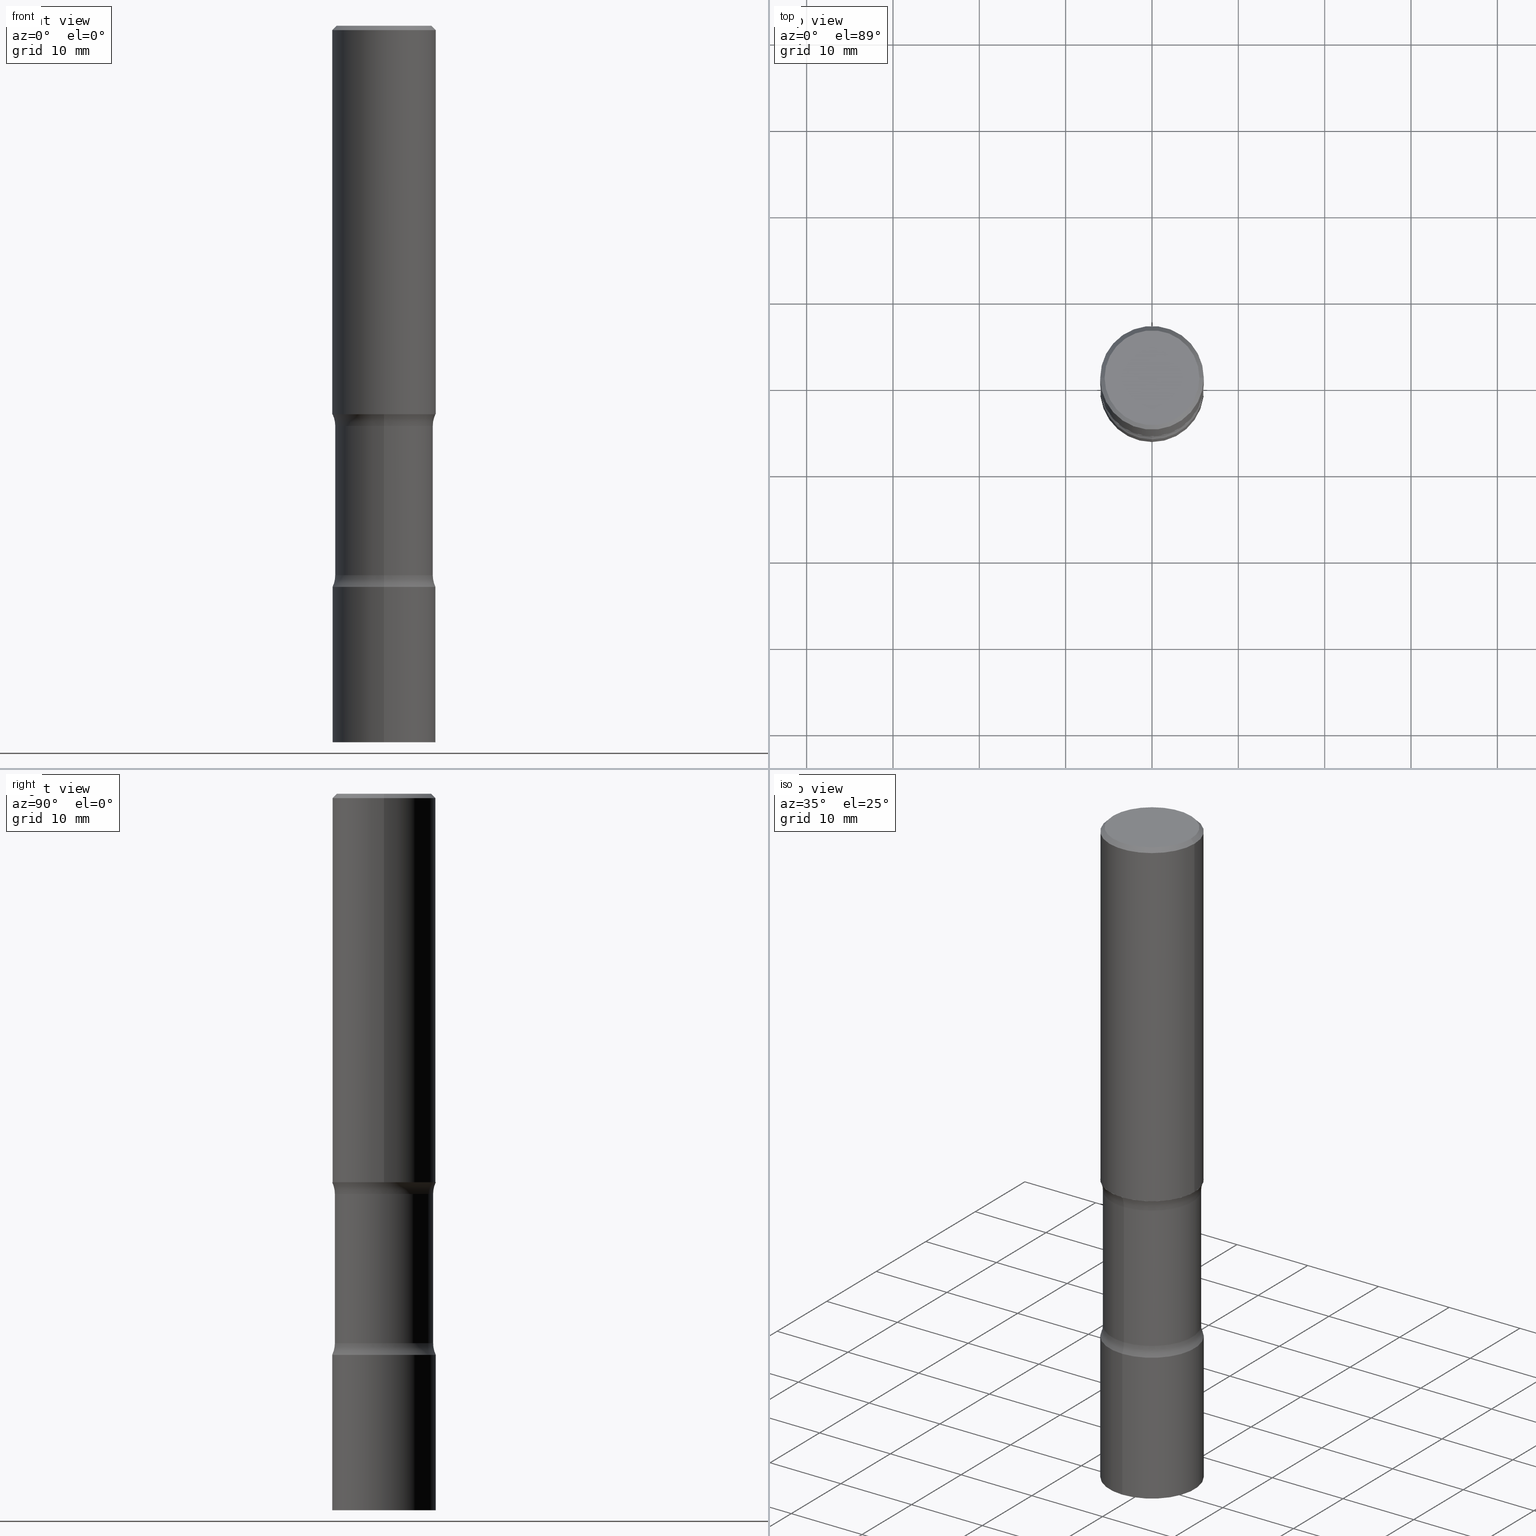
[diagram: canonical four-view strip — front | top / right | iso, engineering-drawing reading convention]
A machine part, canonical four-view strip (front | top / right | iso — engineering-drawing reading convention). The complete STEP part file that produces these views, byte-faithful:
ISO-10303-21;
HEADER;
FILE_DESCRIPTION (( 'STEP AP203' ),
    '1' );
FILE_NAME ('44650.STEP',
    '2024-03-11T13:40:11',
    ( '' ),
    ( '' ),
    'SwSTEP 2.0',
    'SolidWorks 2023',
    '' );
FILE_SCHEMA (( 'CONFIG_CONTROL_DESIGN' ));
ENDSEC;

DATA;
#1 = VERTEX_POINT ( 'NONE', #46 ) ;
#2 = CARTESIAN_POINT ( 'NONE',  ( 0.2161999999999997257, -1.586759460484350213E-15, -1.707404996039081677E-17 ) ) ;
#3 = ORIENTED_EDGE ( 'NONE', *, *, #405, .F. ) ;
#4 = FACE_OUTER_BOUND ( 'NONE', #274, .T. ) ;
#5 = CARTESIAN_POINT ( 'NONE',  ( 4.175405657340879278E-46, -5.961372681521788801E-32, -1.707404996040164512E-17 ) ) ;
#6 = DIRECTION ( 'NONE',  ( 1.000000000000000000, -6.982962677686267499E-15, 4.875778670202491993E-29 ) ) ;
#7 = AXIS2_PLACEMENT_3D ( 'NONE', #5, #330, #170 ) ;
#8 = DIRECTION ( 'NONE',  ( 1.000000000000000000, -6.982962677686266711E-15, 4.876176775795935793E-29 ) ) ;
#9 = AXIS2_PLACEMENT_3D ( 'NONE', #267, #463, #108 ) ;
#10 = APPROVAL_STATUS ( 'not_yet_approved' ) ;
#11 = ADVANCED_FACE ( 'NONE', ( #53 ), #48, .F. ) ;
#12 = FACE_OUTER_BOUND ( 'NONE', #232, .T. ) ;
#13 = APPROVAL_DATE_TIME ( #52, #237 ) ;
#14 = APPROVAL ( #101, 'UNSPECIFIED' ) ;
#15 = CYLINDRICAL_SURFACE ( 'NONE', #445, 0.2361999999999998545 ) ;
#16 = ORIENTED_EDGE ( 'NONE', *, *, #222, .T. ) ;
#17 = AXIS2_PLACEMENT_3D ( 'NONE', #485, #44, #250 ) ;
#18 = DIRECTION ( 'NONE',  ( -2.445468806185136597E-29, 3.491481338843145583E-15, 1.000000000000000000 ) ) ;
#19 = CARTESIAN_POINT ( 'NONE',  ( 6.251769390375393387E-29, -8.943558425766346826E-15, -2.559000000000000163 ) ) ;
#20 = DIRECTION ( 'NONE',  ( -2.443051735199450361E-29, 3.494942722065785173E-15, 1.000000000000000000 ) ) ;
#21 = CONICAL_SURFACE ( 'NONE', #271, 0.2361999999999997712, 0.7853981633974477239 ) ;
#22 = SHAPE_DEFINITION_REPRESENTATION ( #379, #129 ) ;
#23 = TOROIDAL_SURFACE ( 'NONE', #265, 0.3489999999999999769, 0.1249999999999999445 ) ;
#24 = EDGE_LOOP ( 'NONE', ( #387, #136, #426, #159 ) ) ;
#25 = DIRECTION ( 'NONE',  ( 2.458502273273184055E-29, -3.472816672154183992E-15, -1.000000000000000000 ) ) ;
#26 = CARTESIAN_POINT ( 'NONE',  ( 4.890937612370289799E-31, -6.982962677686315028E-17, -0.02000000000000006981 ) ) ;
#27 = CARTESIAN_POINT ( 'NONE',  ( 1.564183639801804262E-15, 0.2239999999999887081, -3.267700000000000937 ) ) ;
#28 = ORIENTED_EDGE ( 'NONE', *, *, #131, .T. ) ;
#29 = EDGE_CURVE ( 'NONE', #243, #293, #70, .T. ) ;
#30 = CIRCLE ( 'NONE', #300, 0.2361999999999997712 ) ;
#31 = PRODUCT ( '44650', '44650', '', ( #173 ) ) ;
#32 = CARTESIAN_POINT ( 'NONE',  ( 6.257954675027765161E-29, -8.934700746099610252E-15, -2.559000000000000163 ) ) ;
#33 = ORIENTED_EDGE ( 'NONE', *, *, #316, .F. ) ;
#34 = CARTESIAN_POINT ( 'NONE',  ( 1.564183639801786316E-15, 0.2239999999999914837, -2.505137582675859065 ) ) ;
#35 = ORIENTED_EDGE ( 'NONE', *, *, #294, .F. ) ;
#36 = ADVANCED_FACE ( 'NONE', ( #372 ), #124, .T. ) ;
#37 = ORIENTED_EDGE ( 'NONE', *, *, #278, .T. ) ;
#38 = VECTOR ( 'NONE', #110, 39.37007874015748143 ) ;
#39 = AXIS2_PLACEMENT_3D ( 'NONE', #82, #132, #448 ) ;
#40 = EDGE_LOOP ( 'NONE', ( #353, #428, #116, #486 ) ) ;
#41 = ADVANCED_FACE ( 'NONE', ( #253 ), #15, .T. ) ;
#42 = CARTESIAN_POINT ( 'NONE',  ( -0.2161999999999997257, 1.544631344304200197E-15, -1.707404996041232555E-17 ) ) ;
#43 = ORIENTED_EDGE ( 'NONE', *, *, #61, .F. ) ;
#44 = DIRECTION ( 'NONE',  ( -2.443051735199450361E-29, 3.494942722065785173E-15, 1.000000000000000000 ) ) ;
#45 = DIRECTION ( 'NONE',  ( 2.458502273273184055E-29, -3.472816672154183992E-15, -1.000000000000000000 ) ) ;
#46 = CARTESIAN_POINT ( 'NONE',  ( 1.678301941865427392E-15, 0.2361999999999885858, -3.267700000000001381 ) ) ;
#47 = DIRECTION ( 'NONE',  ( 0.000000000000000000, 0.000000000000000000, 1.000000000000000000 ) ) ;
#48 = PLANE ( 'NONE',  #416 ) ;
#49 = AXIS2_PLACEMENT_3D ( 'NONE', #120, #275, #283 ) ;
#50 = CARTESIAN_POINT ( 'NONE',  ( 0.000000000000000000, 0.000000000000000000, 0.000000000000000000 ) ) ;
#51 = DIRECTION ( 'NONE',  ( 2.458502273273184055E-29, -3.472816672154183992E-15, -1.000000000000000000 ) ) ;
#52 = DATE_AND_TIME ( #210, #107 ) ;
#53 = FACE_OUTER_BOUND ( 'NONE', #68, .T. ) ;
#54 = ADVANCED_FACE ( 'NONE', ( #130 ), #86, .T. ) ;
#55 = CIRCLE ( 'NONE', #348, 0.2361999999999999933 ) ;
#56 = LINE ( 'NONE', #140, #155 ) ;
#57 = EDGE_CURVE ( 'NONE', #166, #408, #437, .T. ) ;
#58 = VECTOR ( 'NONE', #490, 39.37007874015748143 ) ;
#59 = CARTESIAN_POINT ( 'NONE',  ( 0.2361999999999997712, -1.690279253850497193E-15, -0.02000000000000006981 ) ) ;
#60 = CARTESIAN_POINT ( 'NONE',  ( 5.763202744330926742E-29, -4.136506686390871865E-15, -1.771599999999999842 ) ) ;
#61 = EDGE_CURVE ( 'NONE', #1, #196, #55, .T. ) ;
#62 = DIRECTION ( 'NONE',  ( 2.445468806185136597E-29, -3.491481338843145583E-15, -1.000000000000000000 ) ) ;
#63 = VECTOR ( 'NONE', #259, 39.37007874015748143 ) ;
#64 = CC_DESIGN_PERSON_AND_ORGANIZATION_ASSIGNMENT ( #298, #455, ( #171 ) ) ;
#65 = DIRECTION ( 'NONE',  ( -6.982962677686265922E-15, -1.000000000000000000, 3.494942722065785173E-15 ) ) ;
#66 = DIRECTION ( 'NONE',  ( 1.000000000000000000, -6.982962677686266711E-15, 0.000000000000000000 ) ) ;
#67 = DIRECTION ( 'NONE',  ( -2.458502273273183494E-29, 3.472816672154183992E-15, 1.000000000000000000 ) ) ;
#68 = EDGE_LOOP ( 'NONE', ( #442, #33 ) ) ;
#69 = CARTESIAN_POINT ( 'NONE',  ( -0.2361999999999997712, 1.579546157692631452E-15, -0.02000000000000006981 ) ) ;
#70 = CIRCLE ( 'NONE', #280, 0.2362000000000000210 ) ;
#71 = AXIS2_PLACEMENT_3D ( 'NONE', #182, #461, #338 ) ;
#72 = ORIENTED_EDGE ( 'NONE', *, *, #364, .T. ) ;
#73 = CC_DESIGN_PERSON_AND_ORGANIZATION_ASSIGNMENT ( #324, #133, ( #31 ) ) ;
#74 = ADVANCED_FACE ( 'NONE', ( #12 ), #105, .T. ) ;
#75 = AXIS2_PLACEMENT_3D ( 'NONE', #318, #472, #80 ) ;
#76 = ORIENTED_EDGE ( 'NONE', *, *, #429, .T. ) ;
#77 = EDGE_CURVE ( 'NONE', #362, #467, #383, .T. ) ;
#78 = ORIENTED_EDGE ( 'NONE', *, *, #260, .T. ) ;
#79 = PERSON ( 'UNSPECIFIED', 'UNSPECIFIED', 'UNSPECIFIED', ('UNSPECIFIED'), ('UNSPECIFIED'), ('UNSPECIFIED') ) ;
#80 = DIRECTION ( 'NONE',  ( 1.000000000000000000, -6.982962677686266711E-15, 0.000000000000000000 ) ) ;
#81 = ORIENTED_EDGE ( 'NONE', *, *, #222, .F. ) ;
#82 = CARTESIAN_POINT ( 'NONE',  ( 6.251769390375393387E-29, -8.943558425766346826E-15, -2.559000000000000163 ) ) ;
#83 = AXIS2_PLACEMENT_3D ( 'NONE', #464, #352, #380 ) ;
#84 = CARTESIAN_POINT ( 'NONE',  ( 4.315944700400087943E-29, -6.209062578112139389E-15, -1.771599999999999842 ) ) ;
#85 = DIRECTION ( 'NONE',  ( -2.445468806185136597E-29, 3.491481338843145583E-15, 1.000000000000000000 ) ) ;
#86 = PLANE ( 'NONE',  #221 ) ;
#87 = PERSON_AND_ORGANIZATION_ROLE ( 'creator' ) ;
#88 = ORIENTED_EDGE ( 'NONE', *, *, #77, .T. ) ;
#89 = COORDINATED_UNIVERSAL_TIME_OFFSET ( 5, 0, .BEHIND. ) ;
#90 = VECTOR ( 'NONE', #483, 39.37007874015748143 ) ;
#91 = FACE_OUTER_BOUND ( 'NONE', #465, .T. ) ;
#92 = VECTOR ( 'NONE', #149, 39.37007874015748143 ) ;
#93 =( LENGTH_UNIT ( ) NAMED_UNIT ( * ) SI_UNIT ( $, .METRE. ) );
#94 = ORIENTED_EDGE ( 'NONE', *, *, #268, .F. ) ;
#95 = APPROVAL_DATE_TIME ( #213, #492 ) ;
#96 = DIRECTION ( 'NONE',  ( 6.982962677686265133E-15, 1.000000000000000000, -3.472816672154183992E-15 ) ) ;
#97 = APPLICATION_PROTOCOL_DEFINITION ( 'international standard', 'config_control_design', 1994, #270 ) ;
#98 = CARTESIAN_POINT ( 'NONE',  ( 0.2361999999999999378, -7.834884124364012517E-15, -1.771600000000000064 ) ) ;
#99 = ADVANCED_FACE ( 'NONE', ( #91 ), #205, .F. ) ;
#100 = CIRCLE ( 'NONE', #75, 0.2361999999999997712 ) ;
#101 = APPROVAL_STATUS ( 'not_yet_approved' ) ;
#102 = DIRECTION ( 'NONE',  ( 1.000000000000000000, -6.982962677686266711E-15, 0.000000000000000000 ) ) ;
#103 = CYLINDRICAL_SURFACE ( 'NONE', #117, 0.2240000000000001157 ) ;
#104 = DIRECTION ( 'NONE',  ( 6.982962677686265922E-15, 1.000000000000000000, -2.439149994343090877E-15 ) ) ;
#105 = CONICAL_SURFACE ( 'NONE', #233, 0.2361999999999997712, 0.7853981633974477239 ) ;
#106 = ORIENTED_EDGE ( 'NONE', *, *, #354, .F. ) ;
#107 = LOCAL_TIME ( 9, 40, 11.00000000000000000, #89 ) ;
#108 = DIRECTION ( 'NONE',  ( 6.982962677686265922E-15, 1.000000000000000000, -2.439149994343090877E-15 ) ) ;
#109 = MANIFOLD_SOLID_BREP ( 'Body-Move/Copy2[1]', #154 ) ;
#110 = DIRECTION ( 'NONE',  ( -2.445468806185136877E-29, 3.491481338843145188E-15, 1.000000000000000000 ) ) ;
#111 = ORIENTED_EDGE ( 'NONE', *, *, #474, .F. ) ;
#112 = DIRECTION ( 'NONE',  ( 1.000000000000000000, -6.860497997771530774E-15, 4.841027455867320914E-29 ) ) ;
#113 = DIRECTION ( 'NONE',  ( 6.982962677686266711E-15, 1.000000000000000000, -3.658724991514638486E-15 ) ) ;
#114 = AXIS2_PLACEMENT_3D ( 'NONE', #19, #491, #139 ) ;
#115 = DIMENSIONAL_EXPONENTS ( 1.000000000000000000, 0.000000000000000000, 0.000000000000000000, 0.000000000000000000, 0.000000000000000000, 0.000000000000000000, 0.000000000000000000 ) ;
#116 = ORIENTED_EDGE ( 'NONE', *, *, #202, .F. ) ;
#117 = AXIS2_PLACEMENT_3D ( 'NONE', #342, #496, #104 ) ;
#118 = ORIENTED_EDGE ( 'NONE', *, *, #228, .T. ) ;
#119 = ADVANCED_FACE ( 'NONE', ( #163 ), #323, .F. ) ;
#120 = CARTESIAN_POINT ( 'NONE',  ( 1.509716530915768746E-15, 0.2161999999999997257, -7.633952904380879871E-16 ) ) ;
#121 = DIRECTION ( 'NONE',  ( 6.860497997771532351E-15, 1.000000000000000000, 0.000000000000000000 ) ) ;
#122 = ORIENTED_EDGE ( 'NONE', *, *, #477, .F. ) ;
#123 = ORIENTED_EDGE ( 'NONE', *, *, #200, .F. ) ;
#124 = CYLINDRICAL_SURFACE ( 'NONE', #242, 0.2361999999999998545 ) ;
#125 = PERSON_AND_ORGANIZATION ( #79, #256 ) ;
#126 = CC_DESIGN_DATE_AND_TIME_ASSIGNMENT ( #226, #340, ( #171 ) ) ;
#127 = EDGE_LOOP ( 'NONE', ( #501, #78, #504, #184 ) ) ;
#128 =( NAMED_UNIT ( * ) PLANE_ANGLE_UNIT ( ) SI_UNIT ( $, .RADIAN. ) );
#129 = ADVANCED_BREP_SHAPE_REPRESENTATION ( '44650', ( #109, #282, #452, #341 ), #479 ) ;
#130 = FACE_OUTER_BOUND ( 'NONE', #189, .T. ) ;
#131 = EDGE_CURVE ( 'NONE', #398, #408, #365, .T. ) ;
#132 = DIRECTION ( 'NONE',  ( -2.443051735199450361E-29, 3.494942722065785173E-15, 1.000000000000000000 ) ) ;
#133 = PERSON_AND_ORGANIZATION_ROLE ( 'design_owner' ) ;
#134 = AXIS2_PLACEMENT_3D ( 'NONE', #457, #18, #102 ) ;
#135 = VECTOR ( 'NONE', #197, 39.37007874015748143 ) ;
#136 = ORIENTED_EDGE ( 'NONE', *, *, #61, .T. ) ;
#137 = LENGTH_MEASURE_WITH_UNIT ( LENGTH_MEASURE( 0.02539999999999999897 ), #93 );
#138 = ADVANCED_FACE ( 'NONE', ( #296 ), #263, .F. ) ;
#139 = DIRECTION ( 'NONE',  ( 6.982962677686265922E-15, 1.000000000000000000, -4.626330217890370125E-15 ) ) ;
#140 = CARTESIAN_POINT ( 'NONE',  ( -1.649375784469495934E-15, -0.2361999999999999933, 8.255054709519384761E-16 ) ) ;
#141 = AXIS2_PLACEMENT_3D ( 'NONE', #227, #425, #145 ) ;
#142 = DIRECTION ( 'NONE',  ( 2.458502273273184055E-29, -3.472816672154183992E-15, -1.000000000000000000 ) ) ;
#143 = LOCAL_TIME ( 9, 40, 11.00000000000000000, #451 ) ;
#144 = COORDINATED_UNIVERSAL_TIME_OFFSET ( 5, 0, .BEHIND. ) ;
#145 = DIRECTION ( 'NONE',  ( -6.982962677686265133E-15, -1.000000000000000000, 0.000000000000000000 ) ) ;
#146 = FACE_OUTER_BOUND ( 'NONE', #262, .T. ) ;
#147 = LINE ( 'NONE', #307, #470 ) ;
#148 = COORDINATED_UNIVERSAL_TIME_OFFSET ( 5, 0, .BEHIND. ) ;
#149 = DIRECTION ( 'NONE',  ( 2.458502273273184335E-29, -3.472816672154183992E-15, -1.000000000000000000 ) ) ;
#150 = ORIENTED_EDGE ( 'NONE', *, *, #29, .T. ) ;
#151 = PLANE ( 'NONE',  #49 ) ;
#152 = DIRECTION ( 'NONE',  ( 2.458502273273184055E-29, -3.472816672154183992E-15, -1.000000000000000000 ) ) ;
#153 = ORIENTED_EDGE ( 'NONE', *, *, #187, .T. ) ;
#154 = CLOSED_SHELL ( 'NONE', ( #207, #183, #119, #54 ) ) ;
#155 = VECTOR ( 'NONE', #386, 39.37007874015748143 ) ;
#156 = ORIENTED_EDGE ( 'NONE', *, *, #320, .F. ) ;
#157 = CIRCLE ( 'NONE', #487, 0.2362000000000000210 ) ;
#158 = DIRECTION ( 'NONE',  ( 6.982962677686265133E-15, 1.000000000000000000, -3.472816672154183992E-15 ) ) ;
#159 = ORIENTED_EDGE ( 'NONE', *, *, #343, .F. ) ;
#160 = ORIENTED_EDGE ( 'NONE', *, *, #202, .T. ) ;
#161 = DIRECTION ( 'NONE',  ( -2.445468806185136597E-29, 3.491481338843145583E-15, 1.000000000000000000 ) ) ;
#162 = ADVANCED_FACE ( 'NONE', ( #219 ), #401, .F. ) ;
#163 = FACE_OUTER_BOUND ( 'NONE', #402, .T. ) ;
#164 = ADVANCED_FACE ( 'NONE', ( #378 ), #21, .T. ) ;
#165 = CIRCLE ( 'NONE', #39, 0.2361999999999999655 ) ;
#166 = VERTEX_POINT ( 'NONE', #337 ) ;
#167 = DIRECTION ( 'NONE',  ( -1.000000000000000000, 6.982962677686266711E-15, 0.000000000000000000 ) ) ;
#168 = PERSON_AND_ORGANIZATION ( #79, #256 ) ;
#169 = LINE ( 'NONE', #292, #135 ) ;
#170 = DIRECTION ( 'NONE',  ( 1.000000000000000000, -6.982962677686267499E-15, 4.875778670202491993E-29 ) ) ;
#171 = SECURITY_CLASSIFICATION ( '', '', #388 ) ;
#172 = DIRECTION ( 'NONE',  ( 2.443051735199450081E-29, -3.494942722065785173E-15, -1.000000000000000000 ) ) ;
#173 = MECHANICAL_CONTEXT ( 'NONE', #270, 'mechanical' ) ;
#174 = CARTESIAN_POINT ( 'NONE',  ( 6.126235813635851018E-29, -8.746641121147388193E-15, -2.505137582675858621 ) ) ;
#175 = PRODUCT_DEFINITION ( 'UNKNOWN', '', #440, #399 ) ;
#176 = DIRECTION ( 'NONE',  ( 2.458502273273184055E-29, -3.472816672154183992E-15, -1.000000000000000000 ) ) ;
#177 = PERSON_AND_ORGANIZATION ( #79, #256 ) ;
#178 = AXIS2_PLACEMENT_3D ( 'NONE', #295, #255, #420 ) ;
#179 = CARTESIAN_POINT ( 'NONE',  ( -1.578600589287185035E-15, -0.2240000000000063607, -1.825462417324140496 ) ) ;
#180 = ORIENTED_EDGE ( 'NONE', *, *, #260, .F. ) ;
#181 = CIRCLE ( 'NONE', #284, 0.1249999999999999584 ) ;
#182 = CARTESIAN_POINT ( 'NONE',  ( 6.257954675027765161E-29, -8.934700746099610252E-15, -2.559000000000000163 ) ) ;
#183 = ADVANCED_FACE ( 'NONE', ( #303 ), #186, .T. ) ;
#184 = ORIENTED_EDGE ( 'NONE', *, *, #57, .F. ) ;
#185 = DIRECTION ( 'NONE',  ( 6.982962677686265922E-15, 1.000000000000000000, -4.626330217890370125E-15 ) ) ;
#186 = CYLINDRICAL_SURFACE ( 'NONE', #339, 0.2361999999999999933 ) ;
#187 = EDGE_CURVE ( 'NONE', #239, #166, #454, .T. ) ;
#188 = CARTESIAN_POINT ( 'NONE',  ( -0.2361999999999998545, 1.678301941865355605E-15, -1.161852468318208056E-29 ) ) ;
#189 = EDGE_LOOP ( 'NONE', ( #505, #43 ) ) ;
#190 = AXIS2_PLACEMENT_3D ( 'NONE', #430, #152, #349 ) ;
#191 = LINE ( 'NONE', #27, #92 ) ;
#192 = ORIENTED_EDGE ( 'NONE', *, *, #424, .T. ) ;
#193 = DIRECTION ( 'NONE',  ( 2.458502273273184055E-29, -3.472816672154183992E-15, -1.000000000000000000 ) ) ;
#194 = ORIENTED_EDGE ( 'NONE', *, *, #343, .T. ) ;
#195 = CIRCLE ( 'NONE', #114, 0.2361999999999999655 ) ;
#196 = VERTEX_POINT ( 'NONE', #493 ) ;
#197 = DIRECTION ( 'NONE',  ( -2.445468806185136877E-29, 3.491481338843145188E-15, 1.000000000000000000 ) ) ;
#198 = APPROVAL_PERSON_ORGANIZATION ( #290, #492, #409 ) ;
#199 = VERTEX_POINT ( 'NONE', #98 ) ;
#200 = EDGE_CURVE ( 'NONE', #398, #269, #195, .T. ) ;
#201 = DIRECTION ( 'NONE',  ( 2.445468806185136597E-29, -3.491481338843145583E-15, -1.000000000000000000 ) ) ;
#202 = EDGE_CURVE ( 'NONE', #319, #359, #407, .T. ) ;
#203 = CARTESIAN_POINT ( 'NONE',  ( 4.464111398429501786E-29, -6.373567964846738051E-15, -1.825462417324141384 ) ) ;
#204 = DIRECTION ( 'NONE',  ( 6.982962677686265922E-15, 1.000000000000000000, -2.439149994343089694E-15 ) ) ;
#205 = TOROIDAL_SURFACE ( 'NONE', #297, 0.3490000000000000879, 0.1249999999999999584 ) ;
#206 = DATE_AND_TIME ( #254, #291 ) ;
#207 = ADVANCED_FACE ( 'NONE', ( #257 ), #376, .T. ) ;
#208 = CC_DESIGN_SECURITY_CLASSIFICATION ( #171, ( #440 ) ) ;
#209 = EDGE_LOOP ( 'NONE', ( #81, #94, #471, #192 ) ) ;
#210 = CALENDAR_DATE ( 2024, 11, 3 ) ;
#211 = EDGE_CURVE ( 'NONE', #196, #319, #56, .T. ) ;
#212 = CARTESIAN_POINT ( 'NONE',  ( 0.000000000000000000, 0.000000000000000000, 0.000000000000000000 ) ) ;
#213 = DATE_AND_TIME ( #412, #143 ) ;
#214 = CARTESIAN_POINT ( 'NONE',  ( 4.332392537037588203E-29, -6.185508339894515992E-15, -1.771600000000000064 ) ) ;
#215 = AXIS2_PLACEMENT_3D ( 'NONE', #368, #489, #204 ) ;
#216 = APPROVAL_ROLE ( '' ) ;
#217 = CC_DESIGN_APPROVAL ( #14, ( #171 ) ) ;
#218 = DIRECTION ( 'NONE',  ( 6.860497997771529985E-15, 1.000000000000000000, 0.000000000000000000 ) ) ;
#219 = FACE_OUTER_BOUND ( 'NONE', #476, .T. ) ;
#220 = DIRECTION ( 'NONE',  ( 2.458502273273183494E-29, -3.472816672154183992E-15, -1.000000000000000000 ) ) ;
#221 = AXIS2_PLACEMENT_3D ( 'NONE', #450, #172, #247 ) ;
#222 = EDGE_CURVE ( 'NONE', #239, #243, #446, .T. ) ;
#223 = CARTESIAN_POINT ( 'NONE',  ( -1.536751551500743867E-15, -0.2240000000000115232, -3.267699999999999605 ) ) ;
#224 = CIRCLE ( 'NONE', #17, 0.2361999999999999933 ) ;
#225 = VERTEX_POINT ( 'NONE', #59 ) ;
#226 = DATE_AND_TIME ( #494, #350 ) ;
#227 = CARTESIAN_POINT ( 'NONE',  ( 2.437053974512568471E-15, 0.3489999999999913727, -2.505137582675859953 ) ) ;
#228 = EDGE_CURVE ( 'NONE', #199, #393, #289, .T. ) ;
#229 = ADVANCED_FACE ( 'NONE', ( #146 ), #419, .F. ) ;
#230 = FACE_OUTER_BOUND ( 'NONE', #481, .T. ) ;
#231 = CC_DESIGN_PERSON_AND_ORGANIZATION_ASSIGNMENT ( #168, #331, ( #440 ) ) ;
#232 = EDGE_LOOP ( 'NONE', ( #122, #462, #37, #435 ) ) ;
#233 = AXIS2_PLACEMENT_3D ( 'NONE', #484, #201, #167 ) ;
#234 = CARTESIAN_POINT ( 'NONE',  ( -1.620449627073573153E-15, -0.2362000000000089306, -2.558999999999999719 ) ) ;
#235 = EDGE_LOOP ( 'NONE', ( #118, #397, #106, #478 ) ) ;
#236 = AXIS2_PLACEMENT_3D ( 'NONE', #441, #85, #6 ) ;
#237 = APPROVAL ( #367, 'UNSPECIFIED' ) ;
#238 = ORIENTED_EDGE ( 'NONE', *, *, #474, .T. ) ;
#239 = VERTEX_POINT ( 'NONE', #179 ) ;
#240 = CARTESIAN_POINT ( 'NONE',  ( 6.119348514940003175E-29, -8.756504124880539089E-15, -2.505137582675858621 ) ) ;
#241 = ADVANCED_FACE ( 'NONE', ( #305 ), #103, .T. ) ;
#242 = AXIS2_PLACEMENT_3D ( 'NONE', #212, #249, #366 ) ;
#243 = VERTEX_POINT ( 'NONE', #264 ) ;
#244 = APPROVAL_PERSON_ORGANIZATION ( #177, #14, #391 ) ;
#245 = EDGE_CURVE ( 'NONE', #393, #273, #427, .T. ) ;
#246 = DIRECTION ( 'NONE',  ( -2.443051735199450361E-29, 3.494942722065785173E-15, 1.000000000000000000 ) ) ;
#247 = DIRECTION ( 'NONE',  ( 6.982962677686265922E-15, 1.000000000000000000, -3.494942722065785173E-15 ) ) ;
#248 = CARTESIAN_POINT ( 'NONE',  ( 0.2361999999999997712, -1.690279253850497193E-15, -0.02000000000000006981 ) ) ;
#249 = DIRECTION ( 'NONE',  ( -2.445468806185136597E-29, 3.491481338843145583E-15, 1.000000000000000000 ) ) ;
#250 = DIRECTION ( 'NONE',  ( -6.982962677686265922E-15, -1.000000000000000000, 4.626330217890369336E-15 ) ) ;
#251 = AXIS2_PLACEMENT_3D ( 'NONE', #302, #25, #185 ) ;
#252 = LINE ( 'NONE', #488, #58 ) ;
#253 = FACE_OUTER_BOUND ( 'NONE', #235, .T. ) ;
#254 = CALENDAR_DATE ( 2024, 11, 3 ) ;
#255 = DIRECTION ( 'NONE',  ( -2.443051735199450361E-29, 3.494942722065785173E-15, 1.000000000000000000 ) ) ;
#256 = ORGANIZATION ( 'UNSPECIFIED', 'UNSPECIFIED', '' ) ;
#257 = FACE_OUTER_BOUND ( 'NONE', #40, .T. ) ;
#258 = ADVANCED_FACE ( 'NONE', ( #230 ), #503, .T. ) ;
#259 = DIRECTION ( 'NONE',  ( 2.458502273273184335E-29, -3.472816672154183992E-15, -1.000000000000000000 ) ) ;
#260 = EDGE_CURVE ( 'NONE', #239, #312, #396, .T. ) ;
#261 = DIRECTION ( 'NONE',  ( 6.982962677686265133E-15, 1.000000000000000000, -3.472816672154183992E-15 ) ) ;
#262 = EDGE_LOOP ( 'NONE', ( #363, #306 ) ) ;
#263 = TOROIDAL_SURFACE ( 'NONE', #432, 0.3489999999999999769, 0.1249999999999999445 ) ;
#264 = CARTESIAN_POINT ( 'NONE',  ( -1.620449627073592086E-15, -0.2362000000000061828, -1.771599999999998953 ) ) ;
#265 = AXIS2_PLACEMENT_3D ( 'NONE', #203, #506, #158 ) ;
#266 = PLANE ( 'NONE',  #325 ) ;
#267 = CARTESIAN_POINT ( 'NONE',  ( 7.994109951444100629E-29, -1.140474360132201428E-14, -3.267700000000000049 ) ) ;
#268 = EDGE_CURVE ( 'NONE', #312, #239, #317, .T. ) ;
#269 = VERTEX_POINT ( 'NONE', #234 ) ;
#270 = APPLICATION_CONTEXT ( 'configuration controlled 3d designs of mechanical parts and assemblies' ) ;
#271 = AXIS2_PLACEMENT_3D ( 'NONE', #26, #62, #459 ) ;
#272 = DIRECTION ( 'NONE',  ( 6.982962677686265922E-15, 1.000000000000000000, -2.439149994343089694E-15 ) ) ;
#273 = VERTEX_POINT ( 'NONE', #69 ) ;
#274 = EDGE_LOOP ( 'NONE', ( #180, #16, #150, #439 ) ) ;
#275 = DIRECTION ( 'NONE',  ( 2.438088387897960049E-29, -3.491481338843145188E-15, -1.000000000000000000 ) ) ;
#276 = ADVANCED_FACE ( 'NONE', ( #395 ), #266, .F. ) ;
#277 = ORIENTED_EDGE ( 'NONE', *, *, #131, .F. ) ;
#278 = EDGE_CURVE ( 'NONE', #362, #273, #147, .T. ) ;
#279 = CARTESIAN_POINT ( 'NONE',  ( 1.649375784469558845E-15, 0.2361999999999910560, -2.559000000000000608 ) ) ;
#280 = AXIS2_PLACEMENT_3D ( 'NONE', #84, #406, #287 ) ;
#281 = ORIENTED_EDGE ( 'NONE', *, *, #405, .T. ) ;
#282 = MANIFOLD_SOLID_BREP ( 'Body-Move/Copy2[2]', #373 ) ;
#283 = DIRECTION ( 'NONE',  ( -1.000000000000000000, 6.982962677686265922E-15, -4.876176775795935793E-29 ) ) ;
#284 = AXIS2_PLACEMENT_3D ( 'NONE', #381, #321, #357 ) ;
#285 = CARTESIAN_POINT ( 'NONE',  ( -2.394313801222203653E-15, -0.3490000000000088032, -2.505137582675857733 ) ) ;
#286 = CARTESIAN_POINT ( 'NONE',  ( 0.000000000000000000, 0.000000000000000000, 0.000000000000000000 ) ) ;
#287 = DIRECTION ( 'NONE',  ( 6.982962677686265922E-15, 1.000000000000000000, -3.469747663417777002E-15 ) ) ;
#288 = ORIENTED_EDGE ( 'NONE', *, *, #364, .F. ) ;
#289 = CIRCLE ( 'NONE', #134, 0.2361999999999999378 ) ;
#290 = PERSON_AND_ORGANIZATION ( #79, #256 ) ;
#291 = LOCAL_TIME ( 9, 40, 11.00000000000000000, #444 ) ;
#292 = CARTESIAN_POINT ( 'NONE',  ( 0.2361999999999998545, -1.649375784469495145E-15, 1.151752954442999387E-29 ) ) ;
#293 = VERTEX_POINT ( 'NONE', #392 ) ;
#294 = EDGE_CURVE ( 'NONE', #312, #408, #191, .T. ) ;
#295 = CARTESIAN_POINT ( 'NONE',  ( 6.251769390375393387E-29, -8.943558425766346826E-15, -2.559000000000000163 ) ) ;
#296 = FACE_OUTER_BOUND ( 'NONE', #209, .T. ) ;
#297 = AXIS2_PLACEMENT_3D ( 'NONE', #411, #51, #332 ) ;
#298 = PERSON_AND_ORGANIZATION ( #79, #256 ) ;
#299 = APPLICATION_CONTEXT ( 'configuration controlled 3d designs of mechanical parts and assemblies' ) ;
#300 = AXIS2_PLACEMENT_3D ( 'NONE', #371, #161, #66 ) ;
#301 = DIRECTION ( 'NONE',  ( -6.982962677686265922E-15, -1.000000000000000000, 3.494942722065785173E-15 ) ) ;
#302 = CARTESIAN_POINT ( 'NONE',  ( 6.251769390375393387E-29, -8.943558425766346826E-15, -2.559000000000000163 ) ) ;
#303 = FACE_OUTER_BOUND ( 'NONE', #24, .T. ) ;
#304 = CARTESIAN_POINT ( 'NONE',  ( -1.649375784469433022E-15, -0.2362000000000089028, -2.558999999999999275 ) ) ;
#305 = FACE_OUTER_BOUND ( 'NONE', #127, .T. ) ;
#306 = ORIENTED_EDGE ( 'NONE', *, *, #29, .F. ) ;
#307 = CARTESIAN_POINT ( 'NONE',  ( -0.2361999999999997712, 1.579546157692631452E-15, -0.02000000000000006981 ) ) ;
#308 = LOCAL_TIME ( 9, 40, 11.00000000000000000, #144 ) ;
#309 = CARTESIAN_POINT ( 'NONE',  ( 1.564183639801767975E-15, 0.2239999999999935931, -1.825462417324142050 ) ) ;
#310 = EDGE_LOOP ( 'NONE', ( #351, #434 ) ) ;
#311 = DIRECTION ( 'NONE',  ( 2.458502273273184055E-29, -3.472816672154183992E-15, -1.000000000000000000 ) ) ;
#312 = VERTEX_POINT ( 'NONE', #309 ) ;
#313 = AXIS2_PLACEMENT_3D ( 'NONE', #415, #20, #301 ) ;
#314 = ORIENTED_EDGE ( 'NONE', *, *, #394, .F. ) ;
#315 = CIRCLE ( 'NONE', #83, 0.2361999999999999378 ) ;
#316 = EDGE_CURVE ( 'NONE', #393, #199, #315, .T. ) ;
#317 = CIRCLE ( 'NONE', #410, 0.2239999999999999769 ) ;
#318 = CARTESIAN_POINT ( 'NONE',  ( 4.890937612370289799E-31, -6.982962677686315028E-17, -0.02000000000000006981 ) ) ;
#319 = VERTEX_POINT ( 'NONE', #304 ) ;
#320 = EDGE_CURVE ( 'NONE', #269, #398, #423, .T. ) ;
#321 = DIRECTION ( 'NONE',  ( -1.000000000000000000, 6.982962677686265922E-15, -4.883557194083112901E-29 ) ) ;
#322 = ORIENTED_EDGE ( 'NONE', *, *, #477, .T. ) ;
#323 = PLANE ( 'NONE',  #71 ) ;
#324 = PERSON_AND_ORGANIZATION ( #79, #256 ) ;
#325 = AXIS2_PLACEMENT_3D ( 'NONE', #32, #67, #498 ) ;
#326 = CC_DESIGN_DATE_AND_TIME_ASSIGNMENT ( #206, #369, ( #175 ) ) ;
#327 = DIRECTION ( 'NONE',  ( 1.000000000000000000, -6.982962677686265922E-15, 4.876176775795935793E-29 ) ) ;
#328 = PERSON_AND_ORGANIZATION ( #79, #256 ) ;
#329 = PRODUCT_RELATED_PRODUCT_CATEGORY ( 'detail', '', ( #31 ) ) ;
#330 = DIRECTION ( 'NONE',  ( -2.445468806185136597E-29, 3.491481338843145583E-15, 1.000000000000000000 ) ) ;
#331 = PERSON_AND_ORGANIZATION_ROLE ( 'creator' ) ;
#332 = DIRECTION ( 'NONE',  ( 6.982962677686265133E-15, 1.000000000000000000, -3.472816672154183992E-15 ) ) ;
#333 = APPROVAL_PERSON_ORGANIZATION ( #328, #237, #216 ) ;
#334 = DIRECTION ( 'NONE',  ( 6.982962677686265922E-15, 1.000000000000000000, -3.469747663417777002E-15 ) ) ;
#335 = ORIENTED_EDGE ( 'NONE', *, *, #316, .T. ) ;
#336 = APPLICATION_PROTOCOL_DEFINITION ( 'international standard', 'config_control_design', 1994, #299 ) ;
#337 = CARTESIAN_POINT ( 'NONE',  ( -1.578600589287168075E-15, -0.2240000000000089697, -2.505137582675858177 ) ) ;
#338 = DIRECTION ( 'NONE',  ( 6.982962677686265922E-15, 1.000000000000000000, -3.494942722065785173E-15 ) ) ;
#339 = AXIS2_PLACEMENT_3D ( 'NONE', #389, #346, #65 ) ;
#340 = DATE_TIME_ROLE ( 'classification_date' ) ;
#341 = AXIS2_PLACEMENT_3D ( 'NONE', #50, #47, #453 ) ;
#342 = CARTESIAN_POINT ( 'NONE',  ( 7.994109951444100629E-29, -1.140474360132201428E-14, -3.267700000000000049 ) ) ;
#343 = EDGE_CURVE ( 'NONE', #359, #319, #165, .T. ) ;
#344 = ORIENTED_EDGE ( 'NONE', *, *, #245, .F. ) ;
#345 = DIRECTION ( 'NONE',  ( 1.000000000000000000, -6.860497997771530774E-15, 4.841027455867320914E-29 ) ) ;
#346 = DIRECTION ( 'NONE',  ( -2.443051735199450361E-29, 3.494942722065785173E-15, 1.000000000000000000 ) ) ;
#347 = PERSON_AND_ORGANIZATION_ROLE ( 'design_supplier' ) ;
#348 = AXIS2_PLACEMENT_3D ( 'NONE', #447, #246, #404 ) ;
#349 = DIRECTION ( 'NONE',  ( 6.982962677686266711E-15, 1.000000000000000000, -3.658724991514638486E-15 ) ) ;
#350 = LOCAL_TIME ( 9, 40, 11.00000000000000000, #148 ) ;
#351 = ORIENTED_EDGE ( 'NONE', *, *, #200, .T. ) ;
#352 = DIRECTION ( 'NONE',  ( -2.445468806185136597E-29, 3.491481338843145583E-15, 1.000000000000000000 ) ) ;
#353 = ORIENTED_EDGE ( 'NONE', *, *, #502, .T. ) ;
#354 = EDGE_CURVE ( 'NONE', #225, #273, #30, .T. ) ;
#355 = ORIENTED_EDGE ( 'NONE', *, *, #268, .T. ) ;
#356 = AXIS2_PLACEMENT_3D ( 'NONE', #417, #345, #218 ) ;
#357 = DIRECTION ( 'NONE',  ( -6.982962677686265133E-15, -1.000000000000000000, 0.000000000000000000 ) ) ;
#358 = EDGE_CURVE ( 'NONE', #312, #293, #181, .T. ) ;
#359 = VERTEX_POINT ( 'NONE', #361 ) ;
#360 = CIRCLE ( 'NONE', #495, 0.1249999999999999584 ) ;
#361 = CARTESIAN_POINT ( 'NONE',  ( 1.678301941865435872E-15, 0.2361999999999910282, -2.559000000000001496 ) ) ;
#362 = VERTEX_POINT ( 'NONE', #42 ) ;
#363 = ORIENTED_EDGE ( 'NONE', *, *, #424, .F. ) ;
#364 = EDGE_CURVE ( 'NONE', #269, #166, #360, .T. ) ;
#365 = CIRCLE ( 'NONE', #141, 0.1249999999999999584 ) ;
#366 = DIRECTION ( 'NONE',  ( 1.000000000000000000, -6.982962677686266711E-15, 4.876176775795935793E-29 ) ) ;
#367 = APPROVAL_STATUS ( 'not_yet_approved' ) ;
#368 = CARTESIAN_POINT ( 'NONE',  ( 6.119348514940003175E-29, -8.756504124880539089E-15, -2.505137582675858621 ) ) ;
#369 = DATE_TIME_ROLE ( 'creation_date' ) ;
#370 = DIRECTION ( 'NONE',  ( -2.438088387897960049E-29, 3.491481338843145188E-15, 1.000000000000000000 ) ) ;
#371 = CARTESIAN_POINT ( 'NONE',  ( 4.890937612370289799E-31, -6.982962677686315028E-17, -0.02000000000000006981 ) ) ;
#372 = FACE_OUTER_BOUND ( 'NONE', #433, .T. ) ;
#373 = CLOSED_SHELL ( 'NONE', ( #41, #164, #74, #460, #11, #36 ) ) ;
#374 = PERSON_AND_ORGANIZATION ( #79, #256 ) ;
#375 = CIRCLE ( 'NONE', #385, 0.2240000000000002267 ) ;
#376 = CYLINDRICAL_SURFACE ( 'NONE', #313, 0.2361999999999999933 ) ;
#377 = CALENDAR_DATE ( 2024, 11, 3 ) ;
#378 = FACE_OUTER_BOUND ( 'NONE', #473, .T. ) ;
#379 = PRODUCT_DEFINITION_SHAPE ( 'NONE', 'NONE',  #175 ) ;
#380 = DIRECTION ( 'NONE',  ( 1.000000000000000000, -6.982962677686266711E-15, 0.000000000000000000 ) ) ;
#381 = CARTESIAN_POINT ( 'NONE',  ( 2.437053974512551116E-15, 0.3489999999999935931, -1.825462417324142494 ) ) ;
#382 = DIRECTION ( 'NONE',  ( 6.982962677686265922E-15, 1.000000000000000000, -3.472816672154183992E-15 ) ) ;
#383 = CIRCLE ( 'NONE', #7, 0.2161999999999997257 ) ;
#384 = APPROVAL_DATE_TIME ( #458, #14 ) ;
#385 = AXIS2_PLACEMENT_3D ( 'NONE', #240, #45, #272 ) ;
#386 = DIRECTION ( 'NONE',  ( -2.443051735199450641E-29, 3.494942722065785173E-15, 1.000000000000000000 ) ) ;
#387 = ORIENTED_EDGE ( 'NONE', *, *, #482, .F. ) ;
#388 = SECURITY_CLASSIFICATION_LEVEL ( 'unclassified' ) ;
#389 = CARTESIAN_POINT ( 'NONE',  ( 0.000000000000000000, 0.000000000000000000, 0.000000000000000000 ) ) ;
#390 = ADVANCED_FACE ( 'NONE', ( #4 ), #23, .F. ) ;
#391 = APPROVAL_ROLE ( '' ) ;
#392 = CARTESIAN_POINT ( 'NONE',  ( 1.649375784469538926E-15, 0.2361999999999937760, -1.771600000000000508 ) ) ;
#393 = VERTEX_POINT ( 'NONE', #475 ) ;
#394 = EDGE_CURVE ( 'NONE', #273, #225, #100, .T. ) ;
#395 = FACE_OUTER_BOUND ( 'NONE', #310, .T. ) ;
#396 = CIRCLE ( 'NONE', #190, 0.2239999999999999769 ) ;
#397 = ORIENTED_EDGE ( 'NONE', *, *, #245, .T. ) ;
#398 = VERTEX_POINT ( 'NONE', #279 ) ;
#399 = DESIGN_CONTEXT ( 'detailed design', #299, 'design' ) ;
#400 = ORIENTED_EDGE ( 'NONE', *, *, #57, .T. ) ;
#401 = TOROIDAL_SURFACE ( 'NONE', #469, 0.3490000000000000879, 0.1249999999999999584 ) ;
#402 = EDGE_LOOP ( 'NONE', ( #160, #194 ) ) ;
#403 = CC_DESIGN_APPROVAL ( #237, ( #440 ) ) ;
#404 = DIRECTION ( 'NONE',  ( -6.982962677686265922E-15, -1.000000000000000000, 4.626330217890369336E-15 ) ) ;
#405 = EDGE_CURVE ( 'NONE', #408, #166, #375, .T. ) ;
#406 = DIRECTION ( 'NONE',  ( 2.458502273273184055E-29, -3.472816672154183992E-15, -1.000000000000000000 ) ) ;
#407 = CIRCLE ( 'NONE', #178, 0.2361999999999999655 ) ;
#408 = VERTEX_POINT ( 'NONE', #34 ) ;
#409 = APPROVAL_ROLE ( '' ) ;
#410 = AXIS2_PLACEMENT_3D ( 'NONE', #466, #311, #113 ) ;
#411 = CARTESIAN_POINT ( 'NONE',  ( 6.126235813635851018E-29, -8.746641121147388193E-15, -2.505137582675858621 ) ) ;
#412 = CALENDAR_DATE ( 2024, 11, 3 ) ;
#413 = DIRECTION ( 'NONE',  ( -2.445468806185136597E-29, 3.491481338843145583E-15, 1.000000000000000000 ) ) ;
#414 =( NAMED_UNIT ( * ) SI_UNIT ( $, .STERADIAN. ) SOLID_ANGLE_UNIT ( ) );
#415 = CARTESIAN_POINT ( 'NONE',  ( 0.000000000000000000, 0.000000000000000000, 0.000000000000000000 ) ) ;
#416 = AXIS2_PLACEMENT_3D ( 'NONE', #214, #370, #327 ) ;
#417 = CARTESIAN_POINT ( 'NONE',  ( -2.394313801222219430E-15, -0.3490000000000063052, -1.825462417324140274 ) ) ;
#418 = CC_DESIGN_PERSON_AND_ORGANIZATION_ASSIGNMENT ( #125, #87, ( #175 ) ) ;
#419 = PLANE ( 'NONE',  #422 ) ;
#420 = DIRECTION ( 'NONE',  ( -6.982962677686265922E-15, -1.000000000000000000, 4.626330217890370125E-15 ) ) ;
#421 = ORIENTED_EDGE ( 'NONE', *, *, #354, .T. ) ;
#422 = AXIS2_PLACEMENT_3D ( 'NONE', #60, #220, #382 ) ;
#423 = CIRCLE ( 'NONE', #251, 0.2361999999999999655 ) ;
#424 = EDGE_CURVE ( 'NONE', #293, #243, #157, .T. ) ;
#425 = DIRECTION ( 'NONE',  ( -1.000000000000000000, 6.982962677686265922E-15, -4.883557194083112901E-29 ) ) ;
#426 = ORIENTED_EDGE ( 'NONE', *, *, #211, .T. ) ;
#427 = LINE ( 'NONE', #188, #38 ) ;
#428 = ORIENTED_EDGE ( 'NONE', *, *, #482, .T. ) ;
#429 = EDGE_CURVE ( 'NONE', #199, #225, #169, .T. ) ;
#430 = CARTESIAN_POINT ( 'NONE',  ( 4.448365575835479275E-29, -6.396116878997944759E-15, -1.825462417324141384 ) ) ;
#431 = ORIENTED_EDGE ( 'NONE', *, *, #278, .F. ) ;
#432 = AXIS2_PLACEMENT_3D ( 'NONE', #497, #176, #96 ) ;
#433 = EDGE_LOOP ( 'NONE', ( #344, #335, #76, #314 ) ) ;
#434 = ORIENTED_EDGE ( 'NONE', *, *, #320, .T. ) ;
#435 = ORIENTED_EDGE ( 'NONE', *, *, #394, .T. ) ;
#436 = FACE_OUTER_BOUND ( 'NONE', #443, .T. ) ;
#437 = CIRCLE ( 'NONE', #215, 0.2240000000000002267 ) ;
#438 = CARTESIAN_POINT ( 'NONE',  ( 4.315944700400087943E-29, -6.209062578112139389E-15, -1.771599999999999842 ) ) ;
#439 = ORIENTED_EDGE ( 'NONE', *, *, #358, .F. ) ;
#440 = PRODUCT_DEFINITION_FORMATION_WITH_SPECIFIED_SOURCE ( 'ANY', '', #31, .NOT_KNOWN. ) ;
#441 = CARTESIAN_POINT ( 'NONE',  ( 4.175405657340879278E-46, -5.961372681521788801E-32, -1.707404996040164512E-17 ) ) ;
#442 = ORIENTED_EDGE ( 'NONE', *, *, #228, .F. ) ;
#443 = EDGE_LOOP ( 'NONE', ( #88, #238 ) ) ;
#444 = COORDINATED_UNIVERSAL_TIME_OFFSET ( 5, 0, .BEHIND. ) ;
#445 = AXIS2_PLACEMENT_3D ( 'NONE', #286, #413, #8 ) ;
#446 = CIRCLE ( 'NONE', #356, 0.1249999999999999584 ) ;
#447 = CARTESIAN_POINT ( 'NONE',  ( 7.983160155111243583E-29, -1.142042433289436647E-14, -3.267700000000000049 ) ) ;
#448 = DIRECTION ( 'NONE',  ( -6.982962677686265922E-15, -1.000000000000000000, 4.626330217890370125E-15 ) ) ;
#449 = LINE ( 'NONE', #248, #90 ) ;
#450 = CARTESIAN_POINT ( 'NONE',  ( 7.991058417971171713E-29, -1.140911357093774644E-14, -3.267700000000000049 ) ) ;
#451 = COORDINATED_UNIVERSAL_TIME_OFFSET ( 5, 0, .BEHIND. ) ;
#452 = MANIFOLD_SOLID_BREP ( 'Body-Move/Copy2[4]', #468 ) ;
#453 = DIRECTION ( 'NONE',  ( 1.000000000000000000, 0.000000000000000000, 0.000000000000000000 ) ) ;
#454 = LINE ( 'NONE', #223, #63 ) ;
#455 = PERSON_AND_ORGANIZATION_ROLE ( 'classification_officer' ) ;
#456 = CIRCLE ( 'NONE', #236, 0.2161999999999997257 ) ;
#457 = CARTESIAN_POINT ( 'NONE',  ( 4.332392537037588203E-29, -6.185508339894515992E-15, -1.771600000000000064 ) ) ;
#458 = DATE_AND_TIME ( #377, #308 ) ;
#459 = DIRECTION ( 'NONE',  ( -1.000000000000000000, 6.982962677686266711E-15, 0.000000000000000000 ) ) ;
#460 = ADVANCED_FACE ( 'NONE', ( #436 ), #151, .F. ) ;
#461 = DIRECTION ( 'NONE',  ( 2.443051735199450081E-29, -3.494942722065785173E-15, -1.000000000000000000 ) ) ;
#462 = ORIENTED_EDGE ( 'NONE', *, *, #77, .F. ) ;
#463 = DIRECTION ( 'NONE',  ( 2.458502273273184055E-29, -3.472816672154183992E-15, -1.000000000000000000 ) ) ;
#464 = CARTESIAN_POINT ( 'NONE',  ( 4.332392537037588203E-29, -6.185508339894515992E-15, -1.771600000000000064 ) ) ;
#465 = EDGE_LOOP ( 'NONE', ( #288, #123, #28, #281 ) ) ;
#466 = CARTESIAN_POINT ( 'NONE',  ( 4.448365575835479275E-29, -6.396116878997944759E-15, -1.825462417324141384 ) ) ;
#467 = VERTEX_POINT ( 'NONE', #2 ) ;
#468 = CLOSED_SHELL ( 'NONE', ( #258, #162, #390, #138, #229, #276, #99, #241 ) ) ;
#469 = AXIS2_PLACEMENT_3D ( 'NONE', #174, #142, #261 ) ;
#470 = VECTOR ( 'NONE', #500, 39.37007874015748143 ) ;
#471 = ORIENTED_EDGE ( 'NONE', *, *, #358, .T. ) ;
#472 = DIRECTION ( 'NONE',  ( -2.445468806185136597E-29, 3.491481338843145583E-15, 1.000000000000000000 ) ) ;
#473 = EDGE_LOOP ( 'NONE', ( #111, #322, #421, #431 ) ) ;
#474 = EDGE_CURVE ( 'NONE', #467, #362, #456, .T. ) ;
#475 = CARTESIAN_POINT ( 'NONE',  ( -0.2361999999999999378, -1.449367041470333251E-15, -1.771600000000000064 ) ) ;
#476 = EDGE_LOOP ( 'NONE', ( #156, #72, #400, #277 ) ) ;
#477 = EDGE_CURVE ( 'NONE', #467, #225, #449, .T. ) ;
#478 = ORIENTED_EDGE ( 'NONE', *, *, #429, .F. ) ;
#479 =( GEOMETRIC_REPRESENTATION_CONTEXT ( 3 ) GLOBAL_UNCERTAINTY_ASSIGNED_CONTEXT ( ( #508 ) ) GLOBAL_UNIT_ASSIGNED_CONTEXT ( ( #480, #128, #414 ) ) REPRESENTATION_CONTEXT ( 'NONE', 'WORKASPACE' ) );
#480 =( CONVERSION_BASED_UNIT ( 'INCH', #137 ) LENGTH_UNIT ( ) NAMED_UNIT ( #115 ) );
#481 = EDGE_LOOP ( 'NONE', ( #355, #153, #3, #35 ) ) ;
#482 = EDGE_CURVE ( 'NONE', #1, #359, #252, .T. ) ;
#483 = DIRECTION ( 'NONE',  ( 0.7071067811865471286, -7.319954787623254468E-15, -0.7071067811865479058 ) ) ;
#484 = CARTESIAN_POINT ( 'NONE',  ( 4.890937612370289799E-31, -6.982962677686315028E-17, -0.02000000000000006981 ) ) ;
#485 = CARTESIAN_POINT ( 'NONE',  ( 7.983160155111243583E-29, -1.142042433289436647E-14, -3.267700000000000049 ) ) ;
#486 = ORIENTED_EDGE ( 'NONE', *, *, #211, .F. ) ;
#487 = AXIS2_PLACEMENT_3D ( 'NONE', #438, #193, #334 ) ;
#488 = CARTESIAN_POINT ( 'NONE',  ( 1.678301941865356394E-15, 0.2361999999999999933, -8.255054709519384761E-16 ) ) ;
#489 = DIRECTION ( 'NONE',  ( 2.458502273273184055E-29, -3.472816672154183992E-15, -1.000000000000000000 ) ) ;
#490 = DIRECTION ( 'NONE',  ( -2.443051735199450641E-29, 3.494942722065785173E-15, 1.000000000000000000 ) ) ;
#491 = DIRECTION ( 'NONE',  ( 2.458502273273184055E-29, -3.472816672154183992E-15, -1.000000000000000000 ) ) ;
#492 = APPROVAL ( #10, 'UNSPECIFIED' ) ;
#493 = CARTESIAN_POINT ( 'NONE',  ( -1.649375784469416061E-15, -0.2362000000000114008, -3.267699999999999161 ) ) ;
#494 = CALENDAR_DATE ( 2024, 11, 3 ) ;
#495 = AXIS2_PLACEMENT_3D ( 'NONE', #285, #112, #121 ) ;
#496 = DIRECTION ( 'NONE',  ( 2.458502273273184055E-29, -3.472816672154183992E-15, -1.000000000000000000 ) ) ;
#497 = CARTESIAN_POINT ( 'NONE',  ( 4.464111398429501786E-29, -6.373567964846738051E-15, -1.825462417324141384 ) ) ;
#498 = DIRECTION ( 'NONE',  ( -6.982962677686265922E-15, -1.000000000000000000, 3.472816672154183992E-15 ) ) ;
#499 = CC_DESIGN_PERSON_AND_ORGANIZATION_ASSIGNMENT ( #374, #347, ( #440 ) ) ;
#500 = DIRECTION ( 'NONE',  ( -0.7071067811865471286, 2.468850131082252722E-15, -0.7071067811865479058 ) ) ;
#501 = ORIENTED_EDGE ( 'NONE', *, *, #187, .F. ) ;
#502 = EDGE_CURVE ( 'NONE', #196, #1, #224, .T. ) ;
#503 = CYLINDRICAL_SURFACE ( 'NONE', #9, 0.2240000000000001157 ) ;
#504 = ORIENTED_EDGE ( 'NONE', *, *, #294, .T. ) ;
#505 = ORIENTED_EDGE ( 'NONE', *, *, #502, .F. ) ;
#506 = DIRECTION ( 'NONE',  ( 2.458502273273184055E-29, -3.472816672154183992E-15, -1.000000000000000000 ) ) ;
#507 = CC_DESIGN_APPROVAL ( #492, ( #175 ) ) ;
#508 = UNCERTAINTY_MEASURE_WITH_UNIT (LENGTH_MEASURE( 1.000000000000000082E-05 ), #480, 'distance_accuracy_value', 'NONE');
ENDSEC;
END-ISO-10303-21;
